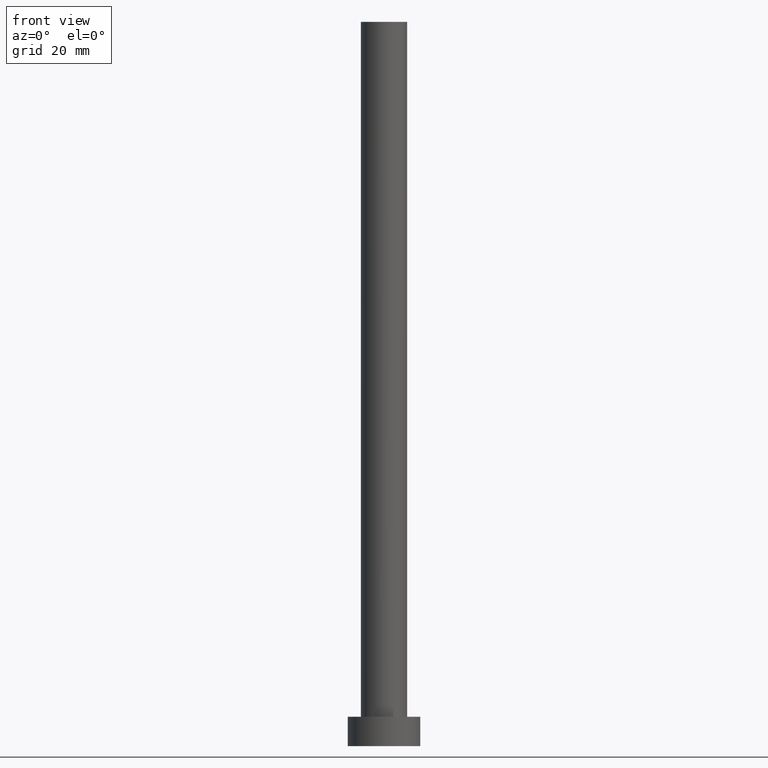
[diagram: clean part render]
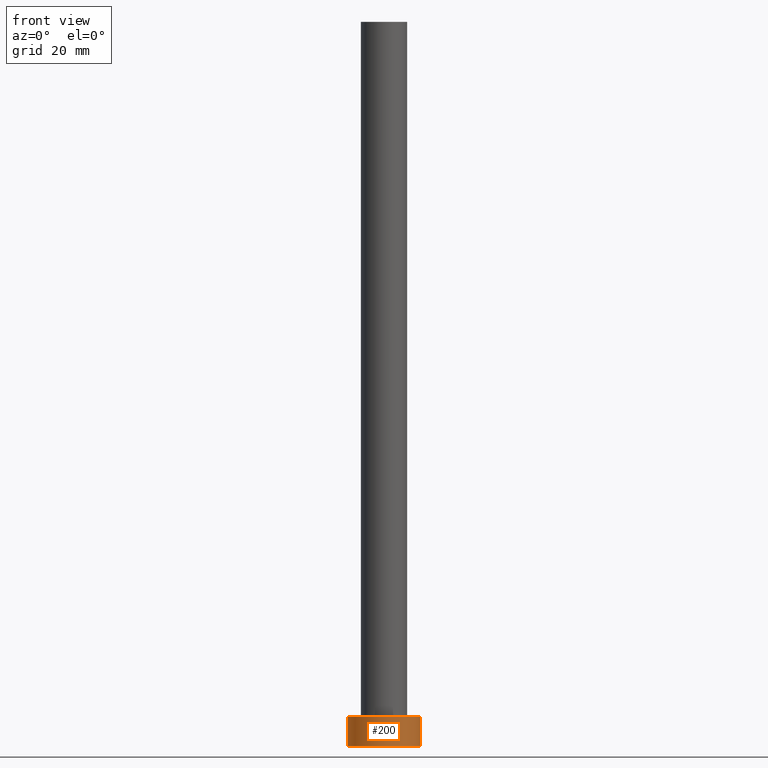
[diagram: same view with one face highlighted and labeled with its STEP entity id]
A machine part, front view. The second image highlights one B-rep face of the part: STEP entity #200.
In plain terms, the highlighted cylindrical surface (edge-blend (fillet) strip) has radius 8 mm, axis along (-0, -0, -1).
Its self-contained STEP definition (entity closure, byte-faithful):
#2 = ORIENTED_EDGE ( 'NONE', *, *, #222, .T. ) ;
#4 = ORIENTED_EDGE ( 'NONE', *, *, #32, .F. ) ;
#13 = DIRECTION ( 'NONE',  ( -1.000000000000000000, 0.000000000000000000, 0.000000000000000000 ) ) ;
#16 = VECTOR ( 'NONE', #125, 1000.000000000000000 ) ;
#25 = CARTESIAN_POINT ( 'NONE',  ( -8.000000000000000000, 0.000000000000000000, 0.000000000000000000 ) ) ;
#28 = CIRCLE ( 'NONE', #62, 8.000000000000000000 ) ;
#32 = EDGE_CURVE ( 'NONE', #111, #130, #225, .T. ) ;
#33 = LINE ( 'NONE', #53, #16 ) ;
#36 = EDGE_LOOP ( 'NONE', ( #4, #150, #129, #2 ) ) ;
#42 = DIRECTION ( 'NONE',  ( 1.000000000000000000, 0.000000000000000000, 0.000000000000000000 ) ) ;
#51 = CYLINDRICAL_SURFACE ( 'NONE', #153, 8.000000000000000000 ) ;
#52 = CARTESIAN_POINT ( 'NONE',  ( 0.000000000000000000, 0.000000000000000000, 0.000000000000000000 ) ) ;
#53 = CARTESIAN_POINT ( 'NONE',  ( -8.000000000000000000, 0.000000000000000000, 6.500000000000000000 ) ) ;
#62 = AXIS2_PLACEMENT_3D ( 'NONE', #177, #73, #42 ) ;
#71 = VECTOR ( 'NONE', #191, 1000.000000000000000 ) ;
#73 = DIRECTION ( 'NONE',  ( 0.000000000000000000, 0.000000000000000000, 1.000000000000000000 ) ) ;
#85 = CIRCLE ( 'NONE', #229, 8.000000000000000000 ) ;
#111 = VERTEX_POINT ( 'NONE', #113 ) ;
#113 = CARTESIAN_POINT ( 'NONE',  ( 8.000000000000000000, 9.797174393178823685E-16, 6.500000000000000000 ) ) ;
#125 = DIRECTION ( 'NONE',  ( -0.000000000000000000, -0.000000000000000000, -1.000000000000000000 ) ) ;
#129 = ORIENTED_EDGE ( 'NONE', *, *, #241, .T. ) ;
#130 = VERTEX_POINT ( 'NONE', #246 ) ;
#143 = DIRECTION ( 'NONE',  ( 0.000000000000000000, 0.000000000000000000, 1.000000000000000000 ) ) ;
#147 = EDGE_CURVE ( 'NONE', #238, #111, #28, .T. ) ;
#150 = ORIENTED_EDGE ( 'NONE', *, *, #147, .F. ) ;
#153 = AXIS2_PLACEMENT_3D ( 'NONE', #199, #255, #13 ) ;
#161 = CARTESIAN_POINT ( 'NONE',  ( 8.000000000000000000, 9.797174393178823685E-16, 6.500000000000000000 ) ) ;
#162 = FACE_OUTER_BOUND ( 'NONE', #36, .T. ) ;
#165 = VERTEX_POINT ( 'NONE', #25 ) ;
#177 = CARTESIAN_POINT ( 'NONE',  ( 0.000000000000000000, 0.000000000000000000, 6.500000000000000000 ) ) ;
#180 = DIRECTION ( 'NONE',  ( 1.000000000000000000, 0.000000000000000000, 0.000000000000000000 ) ) ;
#191 = DIRECTION ( 'NONE',  ( -0.000000000000000000, -0.000000000000000000, -1.000000000000000000 ) ) ;
#199 = CARTESIAN_POINT ( 'NONE',  ( 0.000000000000000000, 0.000000000000000000, 6.500000000000000000 ) ) ;
#200 = ADVANCED_FACE ( 'NONE', ( #162 ), #51, .T. ) ;
#222 = EDGE_CURVE ( 'NONE', #165, #130, #85, .T. ) ;
#225 = LINE ( 'NONE', #161, #71 ) ;
#229 = AXIS2_PLACEMENT_3D ( 'NONE', #52, #143, #180 ) ;
#236 = CARTESIAN_POINT ( 'NONE',  ( -8.000000000000000000, 0.000000000000000000, 6.500000000000000000 ) ) ;
#238 = VERTEX_POINT ( 'NONE', #236 ) ;
#241 = EDGE_CURVE ( 'NONE', #238, #165, #33, .T. ) ;
#246 = CARTESIAN_POINT ( 'NONE',  ( 8.000000000000000000, 9.797174393178823685E-16, 0.000000000000000000 ) ) ;
#255 = DIRECTION ( 'NONE',  ( -0.000000000000000000, -0.000000000000000000, -1.000000000000000000 ) ) ;